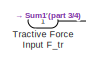
[diagram: root canvas - part 1/4, top left region]
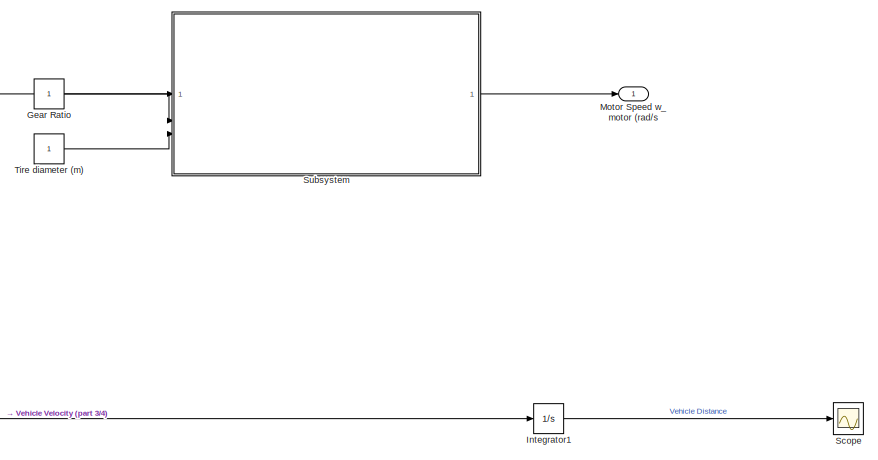
[diagram: root canvas - part 2/4, top right region]
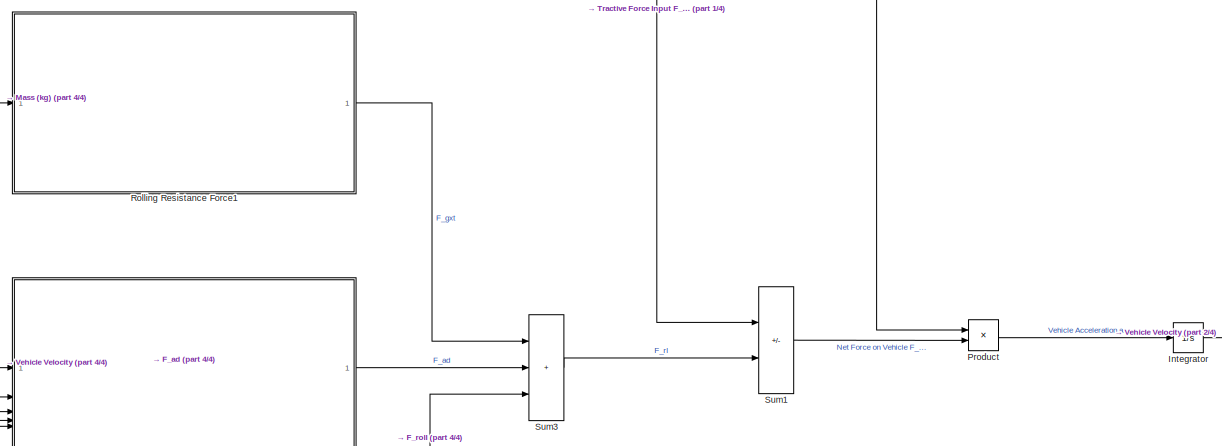
[diagram: root canvas - part 3/4, central region]
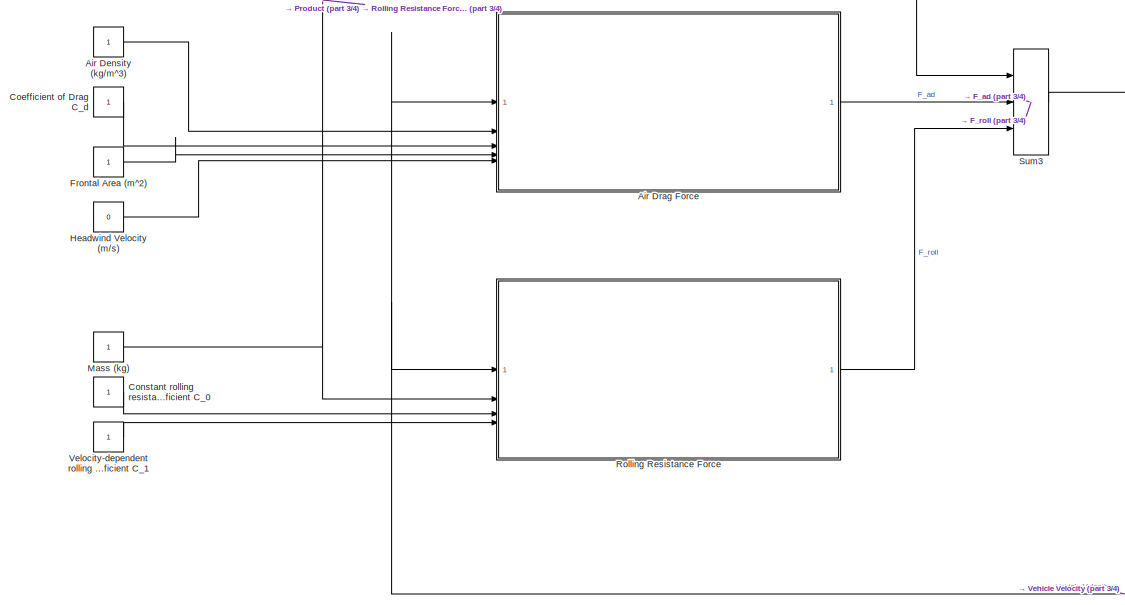
[diagram: root canvas - part 4/4, bottom left region]
MODEL slx_81efeb4b5277
KIND model
CONFIG AbsTol = auto
CONFIG EnableMultiTasking = off
CONFIG FixedStep = auto
CONFIG MaxStep = auto
CONFIG MinStep = auto
CONFIG RelTol = 1e-3
CONFIG SampleTimeConstraint = Unconstrained
CONFIG SolverName = VariableStepAuto
CONFIG StartTime = 0.0
CONFIG StopTime = 10.0
BLOCK [Constant] Air Density (kg//m^3)
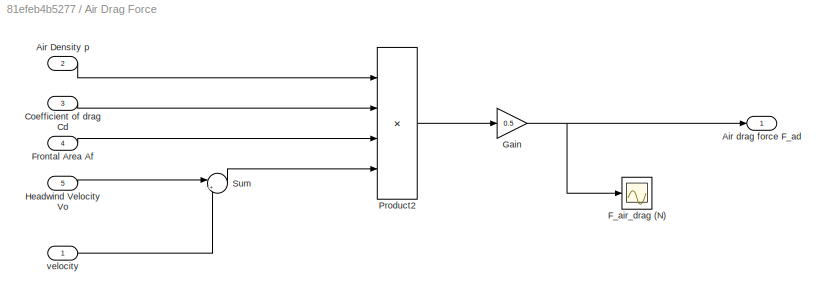
BLOCK [SubSystem] Air Drag Force 
BLOCK [Inport] Air Drag Force /Air Density p
  Port = 2
BLOCK [Outport] Air Drag Force /Air drag force F_ad
BLOCK [Inport] Air Drag Force /Coefficient of drag Cd
  Port = 3
BLOCK [Scope] Air Drag Force /F_air_drag (N)
  Floating = off
  NumInputPorts = 1
  ScopeSpecificationString = Simulink.scopes.TimeScopeBlockCfg('CurrentConfiguration', extmgr.ConfigurationSet(extmgr.Configuration('Core','General UI',true),extmgr.Configuration('Core','Source UI',true),extmgr.Configuration('Sources','WiredSimulink',true,'DataLoggingVariableName','ScopeData3'),extmgr.Configuration('Visuals','Time Domain',true,'SerializedDisplays',{struct('MinYLimReal','-1.17101','MaxYLimReal','10.53913','YLa...<+1397ch>
BLOCK [Inport] Air Drag Force /Frontal Area Af
  Port = 4
BLOCK [Gain] Air Drag Force /Gain
  Gain = 0.5
BLOCK [Inport] Air Drag Force /Headwind Velocity Vo
  Port = 5
BLOCK [Product] Air Drag Force /Product2
  Inputs = 4
BLOCK [Sum] Air Drag Force /Sum
  Inputs = |++
  NameLocation = right
BLOCK [Inport] Air Drag Force /velocity
BLOCK [Constant] Coefficient of Drag C_d
BLOCK [Constant] Constant rolling resistance coefficient C_0
BLOCK [Constant] Frontal Area (m^2)
BLOCK [Constant] Gear Ratio
BLOCK [Constant] Headwind Velocity (m//s)
  Value = 0
BLOCK [Integrator] Integrator
BLOCK [Integrator] Integrator1
BLOCK [Constant] Mass (kg)
BLOCK [Outport] Motor Speed w_motor (rad//s
BLOCK [Product] Product
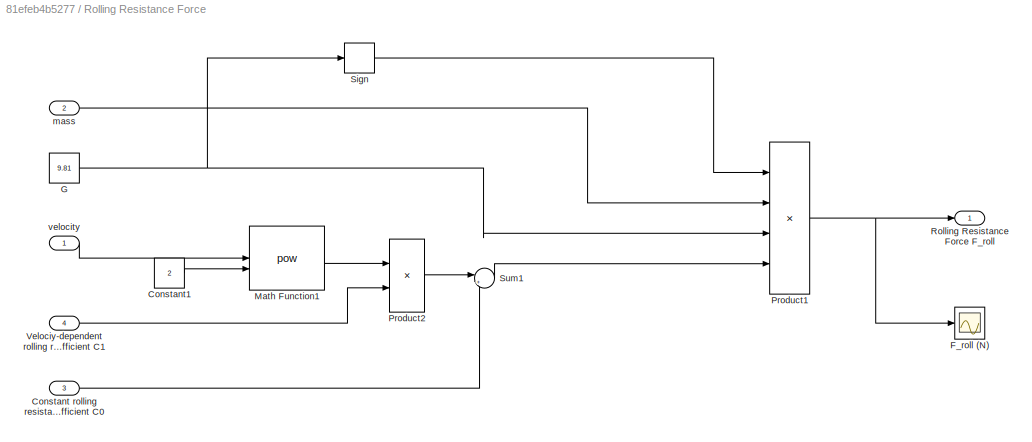
BLOCK [SubSystem] Rolling Resistance Force
BLOCK [Inport] Rolling Resistance Force/Constant rolling resistance coefficient C0
  Port = 3
BLOCK [Constant] Rolling Resistance Force/Constant1
  Value = 2
BLOCK [Scope] Rolling Resistance Force/F_roll (N)
  Floating = off
  NumInputPorts = 1
  ScopeSpecificationString = Simulink.scopes.TimeScopeBlockCfg('CurrentConfiguration', extmgr.ConfigurationSet(extmgr.Configuration('Core','General UI',true),extmgr.Configuration('Core','Source UI',true),extmgr.Configuration('Sources','WiredSimulink',true,'DataLoggingVariableName','ScopeData4'),extmgr.Configuration('Visuals','Time Domain',true,'SerializedDisplays',{struct('MinYLimReal','33.37021','MaxYLimReal','43.01812','YLa...<+1403ch>
BLOCK [Constant] Rolling Resistance Force/G
  Value = 9.81
BLOCK [Math] Rolling Resistance Force/Math Function1
  Operator = pow
BLOCK [Product] Rolling Resistance Force/Product1
  Inputs = 4
BLOCK [Product] Rolling Resistance Force/Product2
BLOCK [Outport] Rolling Resistance Force/Rolling Resistance Force F_roll
BLOCK [Signum] Rolling Resistance Force/Sign
BLOCK [Sum] Rolling Resistance Force/Sum1
  Inputs = |++
  NameLocation = right
BLOCK [Inport] Rolling Resistance Force/Velociy-dependent rolling resistance coefficient C1
  Port = 4
BLOCK [Inport] Rolling Resistance Force/mass
  Port = 2
BLOCK [Inport] Rolling Resistance Force/velocity
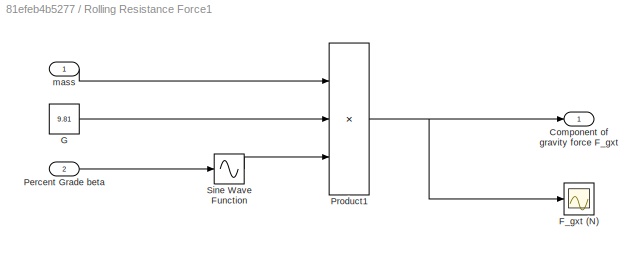
BLOCK [SubSystem] Rolling Resistance Force1
BLOCK [Outport] Rolling Resistance Force1/Component of gravity force F_gxt
BLOCK [Scope] Rolling Resistance Force1/F_gxt (N)
  Floating = off
  NumInputPorts = 1
  ScopeSpecificationString = Simulink.scopes.TimeScopeBlockCfg('CurrentConfiguration', extmgr.ConfigurationSet(extmgr.Configuration('Core','General UI',true),extmgr.Configuration('Core','Source UI',true),extmgr.Configuration('Sources','WiredSimulink',true,'DataLoggingVariableName','ScopeData4'),extmgr.Configuration('Visuals','Time Domain',true,'SerializedDisplays',{struct('MinYLimReal','33.37021','MaxYLimReal','43.01812','YLa...<+1403ch>
BLOCK [Constant] Rolling Resistance Force1/G
  Value = 9.81
BLOCK [Inport] Rolling Resistance Force1/Percent Grade beta
  Port = 2
BLOCK [Product] Rolling Resistance Force1/Product1
  Inputs = 3
BLOCK [Sin] Rolling Resistance Force1/Sine Wave Function
  SampleTime = 0
  TimeSource = Use external signal
BLOCK [Inport] Rolling Resistance Force1/mass
BLOCK [Scope] Scope
  Floating = off
  NumInputPorts = 1
  ScopeSpecificationString = Simulink.scopes.TimeScopeBlockCfg('CurrentConfiguration', extmgr.ConfigurationSet(extmgr.Configuration('Core','General UI',true),extmgr.Configuration('Core','Source UI',true),extmgr.Configuration('Sources','WiredSimulink',true,'DataLoggingVariableName','ScopeData1'),extmgr.Configuration('Visuals','Time Domain',true),extmgr.Configuration('Tools','Plot Navigation',true),extmgr.Configuration('Tools',...<+40ch>
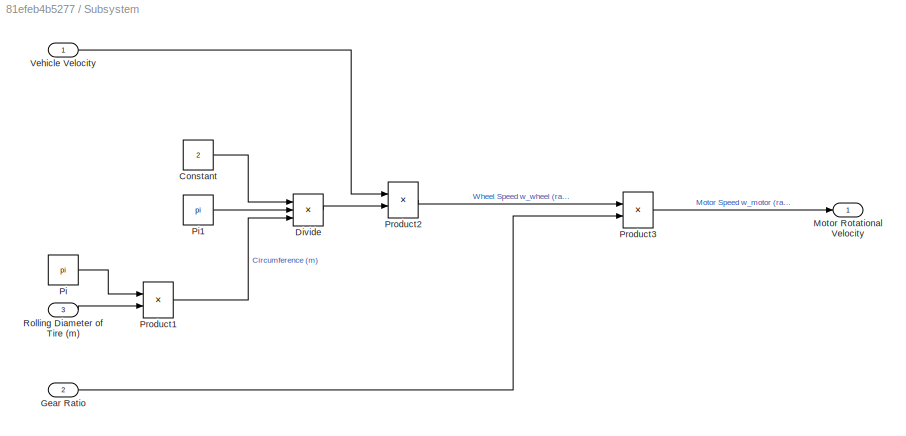
BLOCK [SubSystem] Subsystem
BLOCK [Constant] Subsystem/Constant
  Value = 2
BLOCK [Product] Subsystem/Divide
  Inputs = **/
BLOCK [Inport] Subsystem/Gear Ratio
  Port = 2
BLOCK [Outport] Subsystem/Motor Rotational Velocity
BLOCK [Constant] Subsystem/Pi
  OutDataTypeStr = Inherit: Inherit via back propagation
  Value = pi
BLOCK [Constant] Subsystem/Pi1
  OutDataTypeStr = Inherit: Inherit via back propagation
  Value = pi
BLOCK [Product] Subsystem/Product1
BLOCK [Product] Subsystem/Product2
BLOCK [Product] Subsystem/Product3
BLOCK [Inport] Subsystem/Rolling Diameter of Tire (m)
  Port = 3
BLOCK [Inport] Subsystem/Vehicle Velocity
BLOCK [Sum] Sum1
  IconShape = rectangular
  Inputs = -+
  NameLocation = right
BLOCK [Sum] Sum3
  IconShape = rectangular
  Inputs = +++
  NameLocation = right
BLOCK [Constant] Tire diameter (m)
BLOCK [Inport] Tractive Force Input F_tr
BLOCK [Constant] Velocity-dependent rolling resistance coefficient C_1
LINE Air Density (kg//m^3):1 -> Air Drag Force :2
LINE Air Drag Force /Air Density p:1 -> Air Drag Force /Product2:1
LINE Air Drag Force /Coefficient of drag Cd:1 -> Air Drag Force /Product2:2
LINE Air Drag Force /Frontal Area Af:1 -> Air Drag Force /Product2:3
NET Air Drag Force /Gain:1 -> Air Drag Force /Air drag force F_ad:1, Air Drag Force /F_air_drag (N):1
LINE Air Drag Force /Headwind Velocity Vo:1 -> Air Drag Force /Sum:1
LINE Air Drag Force /Product2:1 -> Air Drag Force /Gain:1
LINE Air Drag Force /Sum:1 -> Air Drag Force /Product2:4
LINE Air Drag Force /velocity:1 -> Air Drag Force /Sum:2
LINE Air Drag Force :1 -> Sum3:2
LINE Coefficient of Drag C_d:1 -> Air Drag Force :3
LINE Constant rolling resistance coefficient C_0:1 -> Rolling Resistance Force:3
LINE Frontal Area (m^2):1 -> Air Drag Force :4
LINE Gear Ratio:1 -> Subsystem:2
LINE Headwind Velocity (m//s):1 -> Air Drag Force :5
LINE Integrator1:1 -> Scope:1
NET Integrator:1 -> Air Drag Force :1, Integrator1:1, Rolling Resistance Force:1, Subsystem:1
NET Mass (kg):1 -> Product:1, Rolling Resistance Force1:1, Rolling Resistance Force:2
LINE Product:1 -> Integrator:1
LINE Rolling Resistance Force/Constant rolling resistance coefficient C0:1 -> Rolling Resistance Force/Sum1:2
LINE Rolling Resistance Force/Constant1:1 -> Rolling Resistance Force/Math Function1:2
NET Rolling Resistance Force/G:1 -> Rolling Resistance Force/Product1:3, Rolling Resistance Force/Sign:1
LINE Rolling Resistance Force/Math Function1:1 -> Rolling Resistance Force/Product2:1
NET Rolling Resistance Force/Product1:1 -> Rolling Resistance Force/F_roll (N):1, Rolling Resistance Force/Rolling Resistance Force F_roll:1
LINE Rolling Resistance Force/Product2:1 -> Rolling Resistance Force/Sum1:1
LINE Rolling Resistance Force/Sign:1 -> Rolling Resistance Force/Product1:1
LINE Rolling Resistance Force/Sum1:1 -> Rolling Resistance Force/Product1:4
LINE Rolling Resistance Force/Velociy-dependent rolling resistance coefficient C1:1 -> Rolling Resistance Force/Product2:2
LINE Rolling Resistance Force/mass:1 -> Rolling Resistance Force/Product1:2
LINE Rolling Resistance Force/velocity:1 -> Rolling Resistance Force/Math Function1:1
LINE Rolling Resistance Force1/G:1 -> Rolling Resistance Force1/Product1:2
LINE Rolling Resistance Force1/Percent Grade beta:1 -> Rolling Resistance Force1/Sine Wave Function:1
NET Rolling Resistance Force1/Product1:1 -> Rolling Resistance Force1/Component of gravity force F_gxt:1, Rolling Resistance Force1/F_gxt (N):1
LINE Rolling Resistance Force1/Sine Wave Function:1 -> Rolling Resistance Force1/Product1:3
LINE Rolling Resistance Force1/mass:1 -> Rolling Resistance Force1/Product1:1
LINE Rolling Resistance Force1:1 -> Sum3:1
LINE Rolling Resistance Force:1 -> Sum3:3
LINE Subsystem/Constant:1 -> Subsystem/Divide:1
LINE Subsystem/Divide:1 -> Subsystem/Product2:2
LINE Subsystem/Gear Ratio:1 -> Subsystem/Product3:2
LINE Subsystem/Pi1:1 -> Subsystem/Divide:2
LINE Subsystem/Pi:1 -> Subsystem/Product1:1
LINE Subsystem/Product1:1 -> Subsystem/Divide:3
LINE Subsystem/Product2:1 -> Subsystem/Product3:1
LINE Subsystem/Product3:1 -> Subsystem/Motor Rotational Velocity:1
LINE Subsystem/Rolling Diameter of Tire (m):1 -> Subsystem/Product1:2
LINE Subsystem/Vehicle Velocity:1 -> Subsystem/Product2:1
LINE Subsystem:1 -> Motor Speed w_motor (rad//s:1
LINE Sum1:1 -> Product:2
LINE Sum3:1 -> Sum1:2
LINE Tire diameter (m):1 -> Subsystem:3
LINE Tractive Force Input F_tr:1 -> Sum1:1
LINE Velocity-dependent rolling resistance coefficient C_1:1 -> Rolling Resistance Force:4
note: NET lines group one-source signal fan-out (src -> all destinations, sorted); 1:1 wires keep LINE
